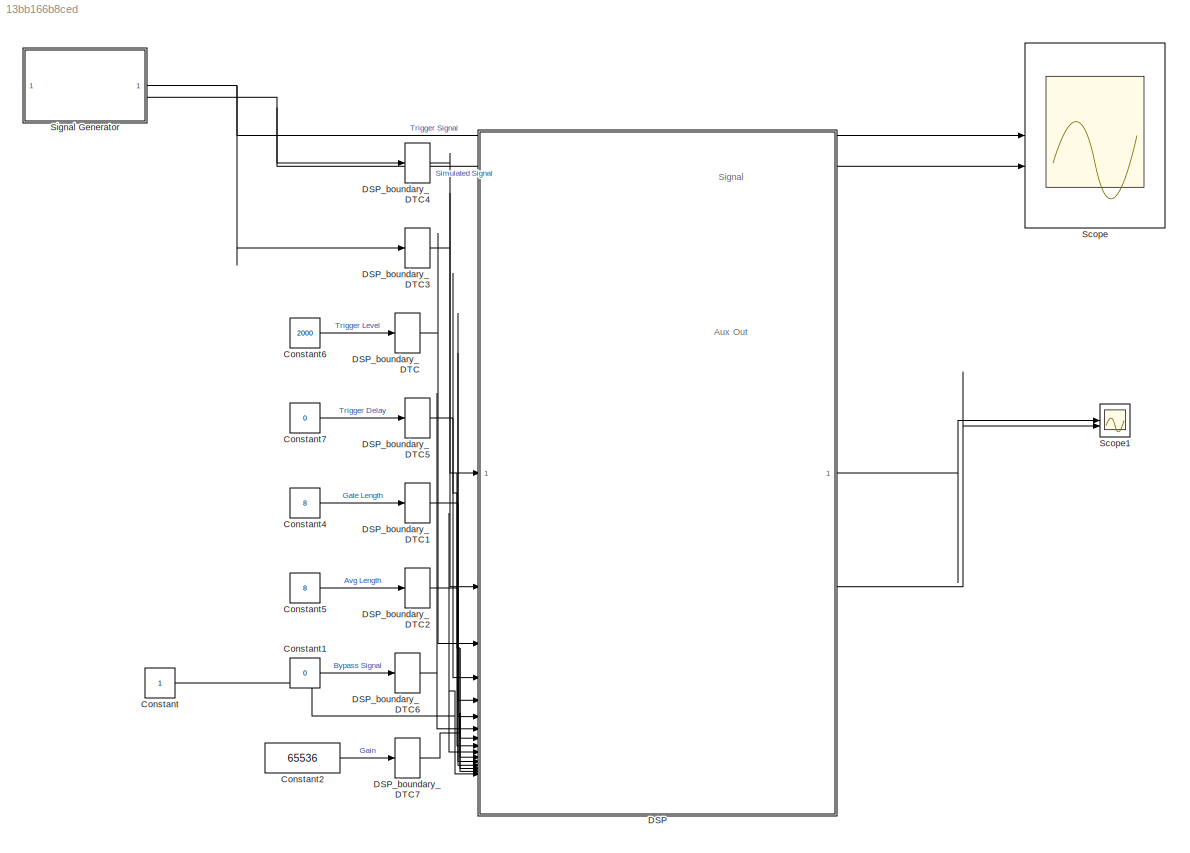
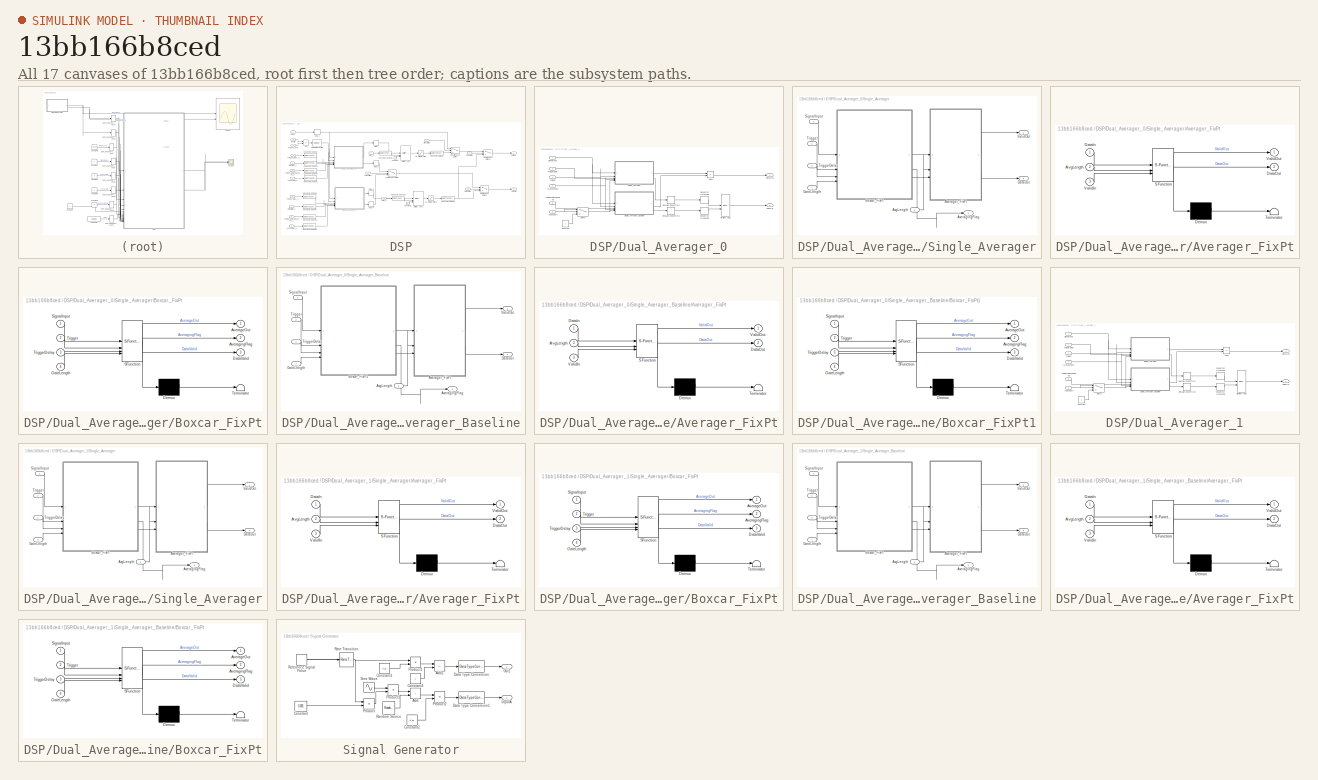
[diagram: thumbnail index - all 17 canvases of the model, root first then tree order]
MODEL slx_13bb166b8ced
KIND model
CONFIG AbsTol = auto
CONFIG EnableMultiTasking = off
CONFIG FixedStep = auto
CONFIG MaxStep = auto
CONFIG MinStep = auto
CONFIG RelTol = 1e-3
CONFIG SampleTimeConstraint = Unconstrained
CONFIG SolverName = FixedStepDiscrete
CONFIG StartTime = 0.0
CONFIG StopTime = 0.001
WORKSPACE source: mxarray member
WORKSPACE test = 0
BLOCK [Constant] Constant
  OutDataTypeStr = boolean
  SampleTime = 1/312.5e6
BLOCK [Constant] Constant1
  OutDataTypeStr = fixdt(0,16,0)
  SampleTime = 1/312.5e6
  Value = 0
BLOCK [Constant] Constant2
  OutDataTypeStr = double
  SampleTime = 1/312.5e6
  Value = 65536
BLOCK [Constant] Constant4
  OutDataTypeStr = double
  SampleTime = 1/312.5e6
  Value = 8
BLOCK [Constant] Constant5
  OutDataTypeStr = double
  SampleTime = 1/312.5e6
  Value = 8
BLOCK [Constant] Constant6
  OutDataTypeStr = double
  SampleTime = 1/312.5e6
  Value = 2000
BLOCK [Constant] Constant7
  OutDataTypeStr = double
  SampleTime = 1/312.5e6
  Value = 0
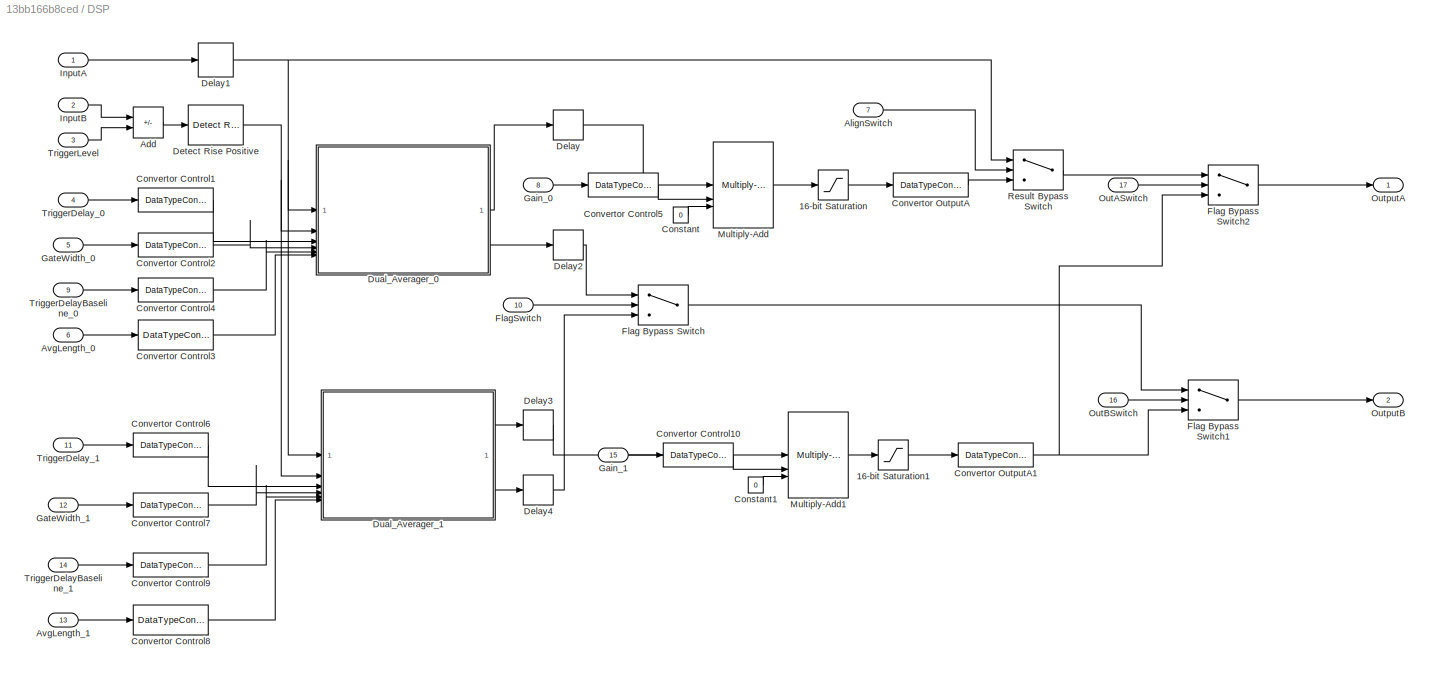
BLOCK [SubSystem] DSP
BLOCK [Saturate] DSP/16-bit Saturation
  LowerLimit = -32768
  UpperLimit = 32767
BLOCK [Saturate] DSP/16-bit Saturation1
  LowerLimit = -32768
  UpperLimit = 32767
BLOCK [Sum] DSP/Add
  IconShape = rectangular
  Inputs = +-
  OutDataTypeStr = fixdt(1,17,0)
BLOCK [Inport] DSP/AlignSwitch
  OutDataTypeStr = boolean
  Port = 7
BLOCK [Inport] DSP/AvgLength_0
  OutDataTypeStr = fixdt(1,16,0)
  Port = 6
BLOCK [Inport] DSP/AvgLength_1
  OutDataTypeStr = fixdt(1,16,0)
  Port = 13
BLOCK [Constant] DSP/Constant
  OutDataTypeStr = fixdt(0,1,0)
  SampleTime = 1/312.5e6
  Value = 0
BLOCK [Constant] DSP/Constant1
  OutDataTypeStr = fixdt(0,1,0)
  SampleTime = 1/312.5e6
  Value = 0
BLOCK [DataTypeConversion] DSP/Convertor Control1
  ConvertRealWorld = Stored Integer (SI)
  OutDataTypeStr = uint32
  RndMeth = Floor
  SaturateOnIntegerOverflow = off
BLOCK [DataTypeConversion] DSP/Convertor Control10
  ConvertRealWorld = Stored Integer (SI)
  OutDataTypeStr = fixdt(0,32,16)
  RndMeth = Floor
  SaturateOnIntegerOverflow = off
BLOCK [DataTypeConversion] DSP/Convertor Control2
  ConvertRealWorld = Stored Integer (SI)
  RndMeth = Floor
  SaturateOnIntegerOverflow = off
BLOCK [DataTypeConversion] DSP/Convertor Control3
  ConvertRealWorld = Stored Integer (SI)
  RndMeth = Floor
  SaturateOnIntegerOverflow = off
BLOCK [DataTypeConversion] DSP/Convertor Control4
  ConvertRealWorld = Stored Integer (SI)
  OutDataTypeStr = uint32
  RndMeth = Floor
  SaturateOnIntegerOverflow = off
BLOCK [DataTypeConversion] DSP/Convertor Control5
  ConvertRealWorld = Stored Integer (SI)
  OutDataTypeStr = fixdt(0,32,16)
  RndMeth = Floor
  SaturateOnIntegerOverflow = off
BLOCK [DataTypeConversion] DSP/Convertor Control6
  ConvertRealWorld = Stored Integer (SI)
  OutDataTypeStr = uint32
  RndMeth = Floor
  SaturateOnIntegerOverflow = off
BLOCK [DataTypeConversion] DSP/Convertor Control7
  ConvertRealWorld = Stored Integer (SI)
  RndMeth = Floor
  SaturateOnIntegerOverflow = off
BLOCK [DataTypeConversion] DSP/Convertor Control8
  ConvertRealWorld = Stored Integer (SI)
  RndMeth = Floor
  SaturateOnIntegerOverflow = off
BLOCK [DataTypeConversion] DSP/Convertor Control9
  ConvertRealWorld = Stored Integer (SI)
  OutDataTypeStr = uint32
  RndMeth = Floor
  SaturateOnIntegerOverflow = off
BLOCK [DataTypeConversion] DSP/Convertor OutputA
  OutDataTypeStr = fixdt(1,16,0)
  RndMeth = Floor
  SaturateOnIntegerOverflow = off
BLOCK [DataTypeConversion] DSP/Convertor OutputA1
  OutDataTypeStr = fixdt(1,16,0)
  RndMeth = Floor
  SaturateOnIntegerOverflow = off
BLOCK [Delay] DSP/Delay
  DelayLength = 1
  InitialCondition = 0
  InputPortMap = u0
  UseCircularBuffer = on
  UserDataPersistent = on
BLOCK [Delay] DSP/Delay1
  InitialCondition = 0
  InputPortMap = u0
BLOCK [Delay] DSP/Delay2
  DelayLength = 1
  InitialCondition = 0
  InputPortMap = u0
  UseCircularBuffer = on
  UserDataPersistent = on
BLOCK [Delay] DSP/Delay3
  DelayLength = 1
  InitialCondition = 0
  InputPortMap = u0
  UseCircularBuffer = on
  UserDataPersistent = on
BLOCK [Delay] DSP/Delay4
  DelayLength = 1
  InitialCondition = 0
  InputPortMap = u0
  UseCircularBuffer = on
  UserDataPersistent = on
BLOCK [Reference] DSP/Detect Rise Positive  REF=hdlsllib/Logic and Bit
Operations/Detect Rise
Positive
  SourceBlock = hdlsllib/Logic and Bit\nOperations/Detect Rise\nPositive
  SourceType = Detect Rise Positive
BLOCK [SubSystem] DSP/Dual_Averager_0
BLOCK [Sum] DSP/Dual_Averager_0/Add2
  IconShape = rectangular
  Inputs = +-
BLOCK [Inport] DSP/Dual_Averager_0/AvgLength
  Port = 6
BLOCK [Reference] DSP/Dual_Averager_0/Bitwise AND1  REF=simulink/Logic and Bit
Operations/Bitwise
Operator
  LibrarySourceBlock = simulink/Quick Insert/Logic and Bit\nOperations/Bitwise AND
  SourceBlock = simulink/Logic and Bit\nOperations/Bitwise\nOperator
  SourceType = Bitwise Operator
BLOCK [Constant] DSP/Dual_Averager_0/Constant
  OutDataTypeStr = uint16
  SampleTime = -1
BLOCK [DataTypeConversion] DSP/Dual_Averager_0/Convertor OutputB2
  ConvertRealWorld = Stored Integer (SI)
  RndMeth = Floor
  SaturateOnIntegerOverflow = off
BLOCK [DataTypeConversion] DSP/Dual_Averager_0/Convertor OutputB3
  ConvertRealWorld = Stored Integer (SI)
  RndMeth = Floor
  SaturateOnIntegerOverflow = off
BLOCK [Outport] DSP/Dual_Averager_0/DataOut
BLOCK [Outport] DSP/Dual_Averager_0/FlagOut
  Port = 2
BLOCK [Inport] DSP/Dual_Averager_0/GateLength
  Port = 4
BLOCK [DataTypeConversion] DSP/Dual_Averager_0/Rescale Convertor2
  OutDataTypeStr = fixdt(1,16,14)
  RndMeth = Floor
  SaturateOnIntegerOverflow = off
BLOCK [DataTypeConversion] DSP/Dual_Averager_0/Rescale Convertor3
  OutDataTypeStr = fixdt(1,16,13)
  RndMeth = Floor
  SaturateOnIntegerOverflow = off
BLOCK [Inport] DSP/Dual_Averager_0/SignalInput
BLOCK [SubSystem] DSP/Dual_Averager_0/Single_Averager
  TreatAsAtomicUnit = on
BLOCK [SubSystem] DSP/Dual_Averager_0/Single_Averager/Averager_FixPt
  ErrorFcn = Stateflow.Translate.translate
  PermitHierarchicalResolution = ExplicitOnly
  SFBlockType = MATLAB Function
  TreatAsAtomicUnit = on
  VariantControl = (default)
BLOCK [Demux] DSP/Dual_Averager_0/Single_Averager/Averager_FixPt/ Demux 
  Outputs = 1
BLOCK [S-Function] DSP/Dual_Averager_0/Single_Averager/Averager_FixPt/ SFunction 
  EnableBusSupport = on
  FunctionName = sf_sfun
  PortCounts = [3 3]
  SFcnIsStateOwnerBlock = off
  SFunctionDeploymentMode = off
  Tag = Stateflow S-Function 2
BLOCK [Terminator] DSP/Dual_Averager_0/Single_Averager/Averager_FixPt/ Terminator 
BLOCK [Inport] DSP/Dual_Averager_0/Single_Averager/Averager_FixPt/AvgLength
  Port = 2
BLOCK [Inport] DSP/Dual_Averager_0/Single_Averager/Averager_FixPt/DataIn
BLOCK [Outport] DSP/Dual_Averager_0/Single_Averager/Averager_FixPt/DataOut
  Port = 2
BLOCK [Inport] DSP/Dual_Averager_0/Single_Averager/Averager_FixPt/ValidIn
  Port = 3
BLOCK [Outport] DSP/Dual_Averager_0/Single_Averager/Averager_FixPt/ValidOut
  VectorParamsAs1DForOutWhenUnconnected = off
BLOCK [Outport] DSP/Dual_Averager_0/Single_Averager/AveragingFlag
  Port = 3
BLOCK [Inport] DSP/Dual_Averager_0/Single_Averager/AvgLength
  Port = 5
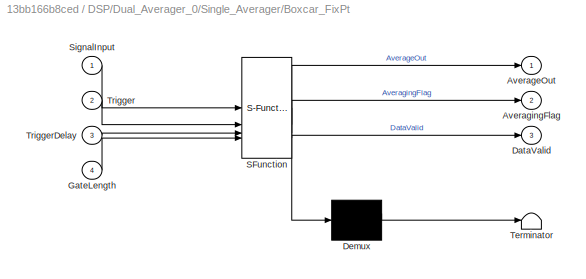
BLOCK [SubSystem] DSP/Dual_Averager_0/Single_Averager/Boxcar_FixPt
  ErrorFcn = Stateflow.Translate.translate
  PermitHierarchicalResolution = ExplicitOnly
  SFBlockType = MATLAB Function
  TreatAsAtomicUnit = on
  VariantControl = (default)
BLOCK [Demux] DSP/Dual_Averager_0/Single_Averager/Boxcar_FixPt/ Demux 
  Outputs = 1
BLOCK [S-Function] DSP/Dual_Averager_0/Single_Averager/Boxcar_FixPt/ SFunction 
  EnableBusSupport = on
  FunctionName = sf_sfun
  PortCounts = [4 4]
  SFcnIsStateOwnerBlock = off
  SFunctionDeploymentMode = off
  Tag = Stateflow S-Function 4
BLOCK [Terminator] DSP/Dual_Averager_0/Single_Averager/Boxcar_FixPt/ Terminator 
BLOCK [Outport] DSP/Dual_Averager_0/Single_Averager/Boxcar_FixPt/AverageOut
  VectorParamsAs1DForOutWhenUnconnected = off
BLOCK [Outport] DSP/Dual_Averager_0/Single_Averager/Boxcar_FixPt/AveragingFlag
  Port = 2
BLOCK [Outport] DSP/Dual_Averager_0/Single_Averager/Boxcar_FixPt/DataValid
  Port = 3
BLOCK [Inport] DSP/Dual_Averager_0/Single_Averager/Boxcar_FixPt/GateLength
  Port = 4
BLOCK [Inport] DSP/Dual_Averager_0/Single_Averager/Boxcar_FixPt/SignalInput
BLOCK [Inport] DSP/Dual_Averager_0/Single_Averager/Boxcar_FixPt/Trigger
  Port = 2
BLOCK [Inport] DSP/Dual_Averager_0/Single_Averager/Boxcar_FixPt/TriggerDelay
  Port = 3
BLOCK [Outport] DSP/Dual_Averager_0/Single_Averager/DataOut
  Port = 2
BLOCK [Inport] DSP/Dual_Averager_0/Single_Averager/GateLength
  Port = 4
BLOCK [Inport] DSP/Dual_Averager_0/Single_Averager/SignalInput
BLOCK [Inport] DSP/Dual_Averager_0/Single_Averager/Trigger
  Port = 2
BLOCK [Inport] DSP/Dual_Averager_0/Single_Averager/TriggerDelay
  Port = 3
BLOCK [Outport] DSP/Dual_Averager_0/Single_Averager/ValidOut
BLOCK [SubSystem] DSP/Dual_Averager_0/Single_Averager_Baseline
  TreatAsAtomicUnit = on
BLOCK [SubSystem] DSP/Dual_Averager_0/Single_Averager_Baseline/Averager_FixPt
  ErrorFcn = Stateflow.Translate.translate
  PermitHierarchicalResolution = ExplicitOnly
  SFBlockType = MATLAB Function
  TreatAsAtomicUnit = on
  VariantControl = (default)
BLOCK [Demux] DSP/Dual_Averager_0/Single_Averager_Baseline/Averager_FixPt/ Demux 
  Outputs = 1
BLOCK [S-Function] DSP/Dual_Averager_0/Single_Averager_Baseline/Averager_FixPt/ SFunction 
  EnableBusSupport = on
  FunctionName = sf_sfun
  PortCounts = [3 3]
  SFcnIsStateOwnerBlock = off
  SFunctionDeploymentMode = off
  Tag = Stateflow S-Function 1
BLOCK [Terminator] DSP/Dual_Averager_0/Single_Averager_Baseline/Averager_FixPt/ Terminator 
BLOCK [Inport] DSP/Dual_Averager_0/Single_Averager_Baseline/Averager_FixPt/AvgLength
  Port = 2
BLOCK [Inport] DSP/Dual_Averager_0/Single_Averager_Baseline/Averager_FixPt/DataIn
BLOCK [Outport] DSP/Dual_Averager_0/Single_Averager_Baseline/Averager_FixPt/DataOut
  Port = 2
BLOCK [Inport] DSP/Dual_Averager_0/Single_Averager_Baseline/Averager_FixPt/ValidIn
  Port = 3
BLOCK [Outport] DSP/Dual_Averager_0/Single_Averager_Baseline/Averager_FixPt/ValidOut
  VectorParamsAs1DForOutWhenUnconnected = off
BLOCK [Outport] DSP/Dual_Averager_0/Single_Averager_Baseline/AveragingFlag
  Port = 3
BLOCK [Inport] DSP/Dual_Averager_0/Single_Averager_Baseline/AvgLength
  Port = 5
BLOCK [SubSystem] DSP/Dual_Averager_0/Single_Averager_Baseline/Boxcar_FixPt1
  ErrorFcn = Stateflow.Translate.translate
  PermitHierarchicalResolution = ExplicitOnly
  SFBlockType = MATLAB Function
  TreatAsAtomicUnit = on
  VariantControl = (default)
BLOCK [Demux] DSP/Dual_Averager_0/Single_Averager_Baseline/Boxcar_FixPt1/ Demux 
  Outputs = 1
BLOCK [S-Function] DSP/Dual_Averager_0/Single_Averager_Baseline/Boxcar_FixPt1/ SFunction 
  EnableBusSupport = on
  FunctionName = sf_sfun
  PortCounts = [4 4]
  SFcnIsStateOwnerBlock = off
  SFunctionDeploymentMode = off
  Tag = Stateflow S-Function 9
BLOCK [Terminator] DSP/Dual_Averager_0/Single_Averager_Baseline/Boxcar_FixPt1/ Terminator 
BLOCK [Outport] DSP/Dual_Averager_0/Single_Averager_Baseline/Boxcar_FixPt1/AverageOut
  VectorParamsAs1DForOutWhenUnconnected = off
BLOCK [Outport] DSP/Dual_Averager_0/Single_Averager_Baseline/Boxcar_FixPt1/AveragingFlag
  Port = 2
BLOCK [Outport] DSP/Dual_Averager_0/Single_Averager_Baseline/Boxcar_FixPt1/DataValid
  Port = 3
BLOCK [Inport] DSP/Dual_Averager_0/Single_Averager_Baseline/Boxcar_FixPt1/GateLength
  Port = 4
BLOCK [Inport] DSP/Dual_Averager_0/Single_Averager_Baseline/Boxcar_FixPt1/SignalInput
BLOCK [Inport] DSP/Dual_Averager_0/Single_Averager_Baseline/Boxcar_FixPt1/Trigger
  Port = 2
BLOCK [Inport] DSP/Dual_Averager_0/Single_Averager_Baseline/Boxcar_FixPt1/TriggerDelay
  Port = 3
BLOCK [Outport] DSP/Dual_Averager_0/Single_Averager_Baseline/DataOut
  Port = 2
BLOCK [Inport] DSP/Dual_Averager_0/Single_Averager_Baseline/GateLength
  Port = 4
BLOCK [Inport] DSP/Dual_Averager_0/Single_Averager_Baseline/SignalInput
BLOCK [Inport] DSP/Dual_Averager_0/Single_Averager_Baseline/Trigger
  Port = 2
BLOCK [Inport] DSP/Dual_Averager_0/Single_Averager_Baseline/TriggerDelay
  Port = 3
BLOCK [Outport] DSP/Dual_Averager_0/Single_Averager_Baseline/ValidOut
BLOCK [Switch] DSP/Dual_Averager_0/Switch
  Criteria = u2 > Threshold
  InputSameDT = off
  OutDataTypeStr = Inherit: Same as first input
  SaturateOnIntegerOverflow = off
BLOCK [Inport] DSP/Dual_Averager_0/Trigger
  Port = 2
BLOCK [Inport] DSP/Dual_Averager_0/TriggerDelay
  Port = 3
BLOCK [Inport] DSP/Dual_Averager_0/TriggerDelayBaseline
  Port = 5
BLOCK [SubSystem] DSP/Dual_Averager_1
BLOCK [Sum] DSP/Dual_Averager_1/Add2
  IconShape = rectangular
  Inputs = +-
BLOCK [Inport] DSP/Dual_Averager_1/AvgLength
  Port = 6
BLOCK [Reference] DSP/Dual_Averager_1/Bitwise AND1  REF=simulink/Logic and Bit
Operations/Bitwise
Operator
  LibrarySourceBlock = simulink/Quick Insert/Logic and Bit\nOperations/Bitwise AND
  SourceBlock = simulink/Logic and Bit\nOperations/Bitwise\nOperator
  SourceType = Bitwise Operator
BLOCK [Constant] DSP/Dual_Averager_1/Constant
  OutDataTypeStr = uint16
  SampleTime = -1
BLOCK [DataTypeConversion] DSP/Dual_Averager_1/Convertor OutputB2
  ConvertRealWorld = Stored Integer (SI)
  RndMeth = Floor
  SaturateOnIntegerOverflow = off
BLOCK [DataTypeConversion] DSP/Dual_Averager_1/Convertor OutputB3
  ConvertRealWorld = Stored Integer (SI)
  RndMeth = Floor
  SaturateOnIntegerOverflow = off
BLOCK [Outport] DSP/Dual_Averager_1/DataOut
BLOCK [Outport] DSP/Dual_Averager_1/FlagOut
  Port = 2
BLOCK [Inport] DSP/Dual_Averager_1/GateLength
  Port = 4
BLOCK [DataTypeConversion] DSP/Dual_Averager_1/Rescale Convertor2
  OutDataTypeStr = fixdt(1,16,14)
  RndMeth = Floor
  SaturateOnIntegerOverflow = off
BLOCK [DataTypeConversion] DSP/Dual_Averager_1/Rescale Convertor3
  OutDataTypeStr = fixdt(1,16,13)
  RndMeth = Floor
  SaturateOnIntegerOverflow = off
BLOCK [Inport] DSP/Dual_Averager_1/SignalInput
BLOCK [SubSystem] DSP/Dual_Averager_1/Single_Averager
  TreatAsAtomicUnit = on
BLOCK [SubSystem] DSP/Dual_Averager_1/Single_Averager/Averager_FixPt
  ErrorFcn = Stateflow.Translate.translate
  PermitHierarchicalResolution = ExplicitOnly
  SFBlockType = MATLAB Function
  TreatAsAtomicUnit = on
  VariantControl = (default)
BLOCK [Demux] DSP/Dual_Averager_1/Single_Averager/Averager_FixPt/ Demux 
  Outputs = 1
BLOCK [S-Function] DSP/Dual_Averager_1/Single_Averager/Averager_FixPt/ SFunction 
  EnableBusSupport = on
  FunctionName = sf_sfun
  PortCounts = [3 3]
  SFcnIsStateOwnerBlock = off
  SFunctionDeploymentMode = off
  Tag = Stateflow S-Function 5
BLOCK [Terminator] DSP/Dual_Averager_1/Single_Averager/Averager_FixPt/ Terminator 
BLOCK [Inport] DSP/Dual_Averager_1/Single_Averager/Averager_FixPt/AvgLength
  Port = 2
BLOCK [Inport] DSP/Dual_Averager_1/Single_Averager/Averager_FixPt/DataIn
BLOCK [Outport] DSP/Dual_Averager_1/Single_Averager/Averager_FixPt/DataOut
  Port = 2
BLOCK [Inport] DSP/Dual_Averager_1/Single_Averager/Averager_FixPt/ValidIn
  Port = 3
BLOCK [Outport] DSP/Dual_Averager_1/Single_Averager/Averager_FixPt/ValidOut
  VectorParamsAs1DForOutWhenUnconnected = off
BLOCK [Outport] DSP/Dual_Averager_1/Single_Averager/AveragingFlag
  Port = 3
BLOCK [Inport] DSP/Dual_Averager_1/Single_Averager/AvgLength
  Port = 5
BLOCK [SubSystem] DSP/Dual_Averager_1/Single_Averager/Boxcar_FixPt
  ErrorFcn = Stateflow.Translate.translate
  PermitHierarchicalResolution = ExplicitOnly
  SFBlockType = MATLAB Function
  TreatAsAtomicUnit = on
  VariantControl = (default)
BLOCK [Demux] DSP/Dual_Averager_1/Single_Averager/Boxcar_FixPt/ Demux 
  Outputs = 1
BLOCK [S-Function] DSP/Dual_Averager_1/Single_Averager/Boxcar_FixPt/ SFunction 
  EnableBusSupport = on
  FunctionName = sf_sfun
  PortCounts = [4 4]
  SFcnIsStateOwnerBlock = off
  SFunctionDeploymentMode = off
  Tag = Stateflow S-Function 3
BLOCK [Terminator] DSP/Dual_Averager_1/Single_Averager/Boxcar_FixPt/ Terminator 
BLOCK [Outport] DSP/Dual_Averager_1/Single_Averager/Boxcar_FixPt/AverageOut
  VectorParamsAs1DForOutWhenUnconnected = off
BLOCK [Outport] DSP/Dual_Averager_1/Single_Averager/Boxcar_FixPt/AveragingFlag
  Port = 2
BLOCK [Outport] DSP/Dual_Averager_1/Single_Averager/Boxcar_FixPt/DataValid
  Port = 3
BLOCK [Inport] DSP/Dual_Averager_1/Single_Averager/Boxcar_FixPt/GateLength
  Port = 4
BLOCK [Inport] DSP/Dual_Averager_1/Single_Averager/Boxcar_FixPt/SignalInput
BLOCK [Inport] DSP/Dual_Averager_1/Single_Averager/Boxcar_FixPt/Trigger
  Port = 2
BLOCK [Inport] DSP/Dual_Averager_1/Single_Averager/Boxcar_FixPt/TriggerDelay
  Port = 3
BLOCK [Outport] DSP/Dual_Averager_1/Single_Averager/DataOut
  Port = 2
BLOCK [Inport] DSP/Dual_Averager_1/Single_Averager/GateLength
  Port = 4
BLOCK [Inport] DSP/Dual_Averager_1/Single_Averager/SignalInput
BLOCK [Inport] DSP/Dual_Averager_1/Single_Averager/Trigger
  Port = 2
BLOCK [Inport] DSP/Dual_Averager_1/Single_Averager/TriggerDelay
  Port = 3
BLOCK [Outport] DSP/Dual_Averager_1/Single_Averager/ValidOut
BLOCK [SubSystem] DSP/Dual_Averager_1/Single_Averager_Baseline
  TreatAsAtomicUnit = on
BLOCK [SubSystem] DSP/Dual_Averager_1/Single_Averager_Baseline/Averager_FixPt
  ErrorFcn = Stateflow.Translate.translate
  PermitHierarchicalResolution = ExplicitOnly
  SFBlockType = MATLAB Function
  TreatAsAtomicUnit = on
  VariantControl = (default)
BLOCK [Demux] DSP/Dual_Averager_1/Single_Averager_Baseline/Averager_FixPt/ Demux 
  Outputs = 1
BLOCK [S-Function] DSP/Dual_Averager_1/Single_Averager_Baseline/Averager_FixPt/ SFunction 
  EnableBusSupport = on
  FunctionName = sf_sfun
  PortCounts = [3 3]
  SFcnIsStateOwnerBlock = off
  SFunctionDeploymentMode = off
  Tag = Stateflow S-Function 7
BLOCK [Terminator] DSP/Dual_Averager_1/Single_Averager_Baseline/Averager_FixPt/ Terminator 
BLOCK [Inport] DSP/Dual_Averager_1/Single_Averager_Baseline/Averager_FixPt/AvgLength
  Port = 2
BLOCK [Inport] DSP/Dual_Averager_1/Single_Averager_Baseline/Averager_FixPt/DataIn
BLOCK [Outport] DSP/Dual_Averager_1/Single_Averager_Baseline/Averager_FixPt/DataOut
  Port = 2
BLOCK [Inport] DSP/Dual_Averager_1/Single_Averager_Baseline/Averager_FixPt/ValidIn
  Port = 3
BLOCK [Outport] DSP/Dual_Averager_1/Single_Averager_Baseline/Averager_FixPt/ValidOut
  VectorParamsAs1DForOutWhenUnconnected = off
BLOCK [Outport] DSP/Dual_Averager_1/Single_Averager_Baseline/AveragingFlag
  Port = 3
BLOCK [Inport] DSP/Dual_Averager_1/Single_Averager_Baseline/AvgLength
  Port = 5
BLOCK [SubSystem] DSP/Dual_Averager_1/Single_Averager_Baseline/Boxcar_FixPt
  ErrorFcn = Stateflow.Translate.translate
  PermitHierarchicalResolution = ExplicitOnly
  SFBlockType = MATLAB Function
  TreatAsAtomicUnit = on
  VariantControl = (default)
BLOCK [Demux] DSP/Dual_Averager_1/Single_Averager_Baseline/Boxcar_FixPt/ Demux 
  Outputs = 1
BLOCK [S-Function] DSP/Dual_Averager_1/Single_Averager_Baseline/Boxcar_FixPt/ SFunction 
  EnableBusSupport = on
  FunctionName = sf_sfun
  PortCounts = [4 4]
  SFcnIsStateOwnerBlock = off
  SFunctionDeploymentMode = off
  Tag = Stateflow S-Function 6
BLOCK [Terminator] DSP/Dual_Averager_1/Single_Averager_Baseline/Boxcar_FixPt/ Terminator 
BLOCK [Outport] DSP/Dual_Averager_1/Single_Averager_Baseline/Boxcar_FixPt/AverageOut
  VectorParamsAs1DForOutWhenUnconnected = off
BLOCK [Outport] DSP/Dual_Averager_1/Single_Averager_Baseline/Boxcar_FixPt/AveragingFlag
  Port = 2
BLOCK [Outport] DSP/Dual_Averager_1/Single_Averager_Baseline/Boxcar_FixPt/DataValid
  Port = 3
BLOCK [Inport] DSP/Dual_Averager_1/Single_Averager_Baseline/Boxcar_FixPt/GateLength
  Port = 4
BLOCK [Inport] DSP/Dual_Averager_1/Single_Averager_Baseline/Boxcar_FixPt/SignalInput
BLOCK [Inport] DSP/Dual_Averager_1/Single_Averager_Baseline/Boxcar_FixPt/Trigger
  Port = 2
BLOCK [Inport] DSP/Dual_Averager_1/Single_Averager_Baseline/Boxcar_FixPt/TriggerDelay
  Port = 3
BLOCK [Outport] DSP/Dual_Averager_1/Single_Averager_Baseline/DataOut
  Port = 2
BLOCK [Inport] DSP/Dual_Averager_1/Single_Averager_Baseline/GateLength
  Port = 4
BLOCK [Inport] DSP/Dual_Averager_1/Single_Averager_Baseline/SignalInput
BLOCK [Inport] DSP/Dual_Averager_1/Single_Averager_Baseline/Trigger
  Port = 2
BLOCK [Inport] DSP/Dual_Averager_1/Single_Averager_Baseline/TriggerDelay
  Port = 3
BLOCK [Outport] DSP/Dual_Averager_1/Single_Averager_Baseline/ValidOut
BLOCK [Switch] DSP/Dual_Averager_1/Switch
  Criteria = u2 > Threshold
  InputSameDT = off
  OutDataTypeStr = Inherit: Same as first input
  SaturateOnIntegerOverflow = off
BLOCK [Inport] DSP/Dual_Averager_1/Trigger
  Port = 2
BLOCK [Inport] DSP/Dual_Averager_1/TriggerDelay
  Port = 3
BLOCK [Inport] DSP/Dual_Averager_1/TriggerDelayBaseline
  Port = 5
BLOCK [Switch] DSP/Flag Bypass Switch
  Criteria = u2 > Threshold
  InputSameDT = off
  OutDataTypeStr = Inherit: Same as first input
  SaturateOnIntegerOverflow = off
BLOCK [Switch] DSP/Flag Bypass Switch1
  Criteria = u2 > Threshold
  InputSameDT = off
  OutDataTypeStr = Inherit: Same as first input
  SaturateOnIntegerOverflow = off
BLOCK [Switch] DSP/Flag Bypass Switch2
  Criteria = u2 > Threshold
  InputSameDT = off
  OutDataTypeStr = Inherit: Same as first input
  SaturateOnIntegerOverflow = off
BLOCK [Inport] DSP/FlagSwitch
  OutDataTypeStr = boolean
  Port = 10
BLOCK [Inport] DSP/Gain_0
  OutDataTypeStr = fixdt(1,32,0)
  Port = 8
BLOCK [Inport] DSP/Gain_1
  OutDataTypeStr = fixdt(1,32,0)
  Port = 15
BLOCK [Inport] DSP/GateWidth_0
  OutDataTypeStr = fixdt(1,16,0)
  Port = 5
BLOCK [Inport] DSP/GateWidth_1
  OutDataTypeStr = fixdt(1,16,0)
  Port = 12
BLOCK [Inport] DSP/InputA
  OutDataTypeStr = fixdt(1,16,0)
BLOCK [Inport] DSP/InputB
  OutDataTypeStr = fixdt(1,16,0)
  Port = 2
BLOCK [Reference] DSP/Multiply-Add  REF=hdlsllib/HDL Operations/Multiply-Add
  SourceBlock = hdlsllib/HDL Operations/Multiply-Add
  SourceType = Multiply-Add
BLOCK [Reference] DSP/Multiply-Add1  REF=hdlsllib/HDL Operations/Multiply-Add
  SourceBlock = hdlsllib/HDL Operations/Multiply-Add
  SourceType = Multiply-Add
BLOCK [Inport] DSP/OutASwitch
  OutDataTypeStr = boolean
  Port = 17
BLOCK [Inport] DSP/OutBSwitch
  OutDataTypeStr = boolean
  Port = 16
BLOCK [Outport] DSP/OutputA
  OutDataTypeStr = fixdt(1,16,0)
  VectorParamsAs1DForOutWhenUnconnected = off
BLOCK [Outport] DSP/OutputB
  OutDataTypeStr = fixdt(1,16,0)
  Port = 2
  VectorParamsAs1DForOutWhenUnconnected = off
BLOCK [Switch] DSP/Result Bypass Switch
  Criteria = u2 > Threshold
  InputSameDT = off
  OutDataTypeStr = fixdt(1,16,0)
  SaturateOnIntegerOverflow = off
BLOCK [Inport] DSP/TriggerDelayBaseline_0
  OutDataTypeStr = fixdt(1,32,0)
  Port = 9
BLOCK [Inport] DSP/TriggerDelayBaseline_1
  OutDataTypeStr = fixdt(1,32,0)
  Port = 14
BLOCK [Inport] DSP/TriggerDelay_0
  OutDataTypeStr = fixdt(1,32,0)
  Port = 4
BLOCK [Inport] DSP/TriggerDelay_1
  OutDataTypeStr = fixdt(1,32,0)
  Port = 11
BLOCK [Inport] DSP/TriggerLevel
  OutDataTypeStr = fixdt(1,16,0)
  Port = 3
BLOCK [DataTypeConversion] DSP_boundary_DTC
BLOCK [DataTypeConversion] DSP_boundary_DTC1
BLOCK [DataTypeConversion] DSP_boundary_DTC2
BLOCK [DataTypeConversion] DSP_boundary_DTC3
BLOCK [DataTypeConversion] DSP_boundary_DTC4
BLOCK [DataTypeConversion] DSP_boundary_DTC5
BLOCK [DataTypeConversion] DSP_boundary_DTC6
BLOCK [DataTypeConversion] DSP_boundary_DTC7
BLOCK [Scope] Scope
  Floating = off
  NumInputPorts = 4
  ScopeSpecificationString = Simulink.scopes.TimeScopeBlockCfg('CurrentConfiguration', extmgr.ConfigurationSet(extmgr.Configuration('Core','General UI',true),extmgr.Configuration('Core','Source UI',true),extmgr.Configuration('Sources','WiredSimulink',true),extmgr.Configuration('Visuals','Time Domain',true,'SerializedDisplays',{struct('MinYLimReal','-4097.00000','MaxYLimReal','36863.00000','YLabelReal','','MinYLimMag','  0.000...<+3438ch>
BLOCK [Scope] Scope1
  Floating = off
  NumInputPorts = 2
  ScopeSpecificationString = Simulink.scopes.TimeScopeBlockCfg('CurrentConfiguration', extmgr.ConfigurationSet(extmgr.Configuration('Core','General UI',true),extmgr.Configuration('Core','Source UI',true),extmgr.Configuration('Sources','WiredSimulink',true,'DataLoggingVariableName','ScopeData1'),extmgr.Configuration('Visuals','Time Domain',true),extmgr.Configuration('Tools','Plot Navigation',true),extmgr.Configuration('Tools',...<+40ch>
BLOCK [SubSystem] Signal Generator
BLOCK [Sum] Signal Generator/Add
  IconShape = rectangular
BLOCK [Sum] Signal Generator/Add1
  IconShape = rectangular
  Inputs = +-
BLOCK [Constant] Signal Generator/Constant
  Value = 0.001
BLOCK [Constant] Signal Generator/Constant1
  Value = 2^15
BLOCK [Constant] Signal Generator/Constant2
  Value = 2^15
BLOCK [Constant] Signal Generator/Constant3
BLOCK [DataTypeConversion] Signal Generator/Data Type Conversion
  OutDataTypeStr = fixdt(1,16,0)
  RndMeth = Floor
  SaturateOnIntegerOverflow = off
BLOCK [DataTypeConversion] Signal Generator/Data Type Conversion1
  OutDataTypeStr = fixdt(1,16,0)
  RndMeth = Floor
  SaturateOnIntegerOverflow = off
BLOCK [Outport] Signal Generator/InputA
  OutDataTypeStr = int16
  Port = 2
BLOCK [Outport] Signal Generator/Out1
  OutDataTypeStr = int16
BLOCK [Product] Signal Generator/Product
BLOCK [Product] Signal Generator/Product1
BLOCK [Product] Signal Generator/Product2
BLOCK [Product] Signal Generator/Product3
BLOCK [Reference] Signal Generator/Random Source  REF=dspsrcs4/Random
Source
  SourceBlock = dspsrcs4/Random\nSource
  SourceType = Random Source
  UserDataPersistent = on
BLOCK [RateTransition] Signal Generator/Rate Transition
  OutPortSampleTime = 1/312.5e6
BLOCK [DiscretePulseGenerator] Signal Generator/Reference Signal Pulse
  Period = 100/(312.5e6)
  PulseType = Time based
  PulseWidth = 16
BLOCK [Sin] Signal Generator/Sine Wave
  Amplitude = 0.5
  Bias = 0.5
  Frequency = 2*pi*10e3
  SampleTime = 1/312.5e6
ANNOTATION (root): Aux Out
ANNOTATION (root): Signal
LINE Constant1:1 -> DSP_boundary_DTC6:1
LINE Constant2:1 -> DSP_boundary_DTC7:1
LINE Constant4:1 -> DSP_boundary_DTC1:1
LINE Constant5:1 -> DSP_boundary_DTC2:1
LINE Constant6:1 -> DSP_boundary_DTC:1
LINE Constant7:1 -> DSP_boundary_DTC5:1
NET Constant:1 -> DSP:10, DSP:16
LINE DSP/16-bit Saturation1:1 -> DSP/Convertor OutputA1:1
LINE DSP/16-bit Saturation:1 -> DSP/Convertor OutputA:1
LINE DSP/Add:1 -> DSP/Detect Rise Positive:1
LINE DSP/AlignSwitch:1 -> DSP/Result Bypass Switch:2
LINE DSP/AvgLength_0:1 -> DSP/Convertor Control3:1
LINE DSP/AvgLength_1:1 -> DSP/Convertor Control8:1
LINE DSP/Constant1:1 -> DSP/Multiply-Add1:3
LINE DSP/Constant:1 -> DSP/Multiply-Add:3
LINE DSP/Convertor Control10:1 -> DSP/Multiply-Add1:2
LINE DSP/Convertor Control1:1 -> DSP/Dual_Averager_0:3
LINE DSP/Convertor Control2:1 -> DSP/Dual_Averager_0:4
LINE DSP/Convertor Control3:1 -> DSP/Dual_Averager_0:6
LINE DSP/Convertor Control4:1 -> DSP/Dual_Averager_0:5
LINE DSP/Convertor Control5:1 -> DSP/Multiply-Add:2
LINE DSP/Convertor Control6:1 -> DSP/Dual_Averager_1:3
LINE DSP/Convertor Control7:1 -> DSP/Dual_Averager_1:4
LINE DSP/Convertor Control8:1 -> DSP/Dual_Averager_1:6
LINE DSP/Convertor Control9:1 -> DSP/Dual_Averager_1:5
NET DSP/Convertor OutputA1:1 -> DSP/Flag Bypass Switch1:3, DSP/Flag Bypass Switch2:3
LINE DSP/Convertor OutputA:1 -> DSP/Result Bypass Switch:3
NET DSP/Delay1:1 -> DSP/Dual_Averager_0:1, DSP/Dual_Averager_1:1, DSP/Result Bypass Switch:1
LINE DSP/Delay2:1 -> DSP/Flag Bypass Switch:1
LINE DSP/Delay3:1 -> DSP/Multiply-Add1:1
LINE DSP/Delay4:1 -> DSP/Flag Bypass Switch:3
LINE DSP/Delay:1 -> DSP/Multiply-Add:1
NET DSP/Detect Rise Positive:1 -> DSP/Dual_Averager_0:2, DSP/Dual_Averager_1:2
LINE DSP/Dual_Averager_0/Add2:1 -> DSP/Dual_Averager_0/DataOut:1
NET DSP/Dual_Averager_0/AvgLength:1 -> DSP/Dual_Averager_0/Switch:1, DSP/Dual_Averager_0/Switch:2
LINE DSP/Dual_Averager_0/Bitwise AND1:1 -> DSP/Dual_Averager_0/FlagOut:1
LINE DSP/Dual_Averager_0/Constant:1 -> DSP/Dual_Averager_0/Switch:3
LINE DSP/Dual_Averager_0/Convertor OutputB2:1 -> DSP/Dual_Averager_0/Bitwise AND1:1
LINE DSP/Dual_Averager_0/Convertor OutputB3:1 -> DSP/Dual_Averager_0/Bitwise AND1:2
NET DSP/Dual_Averager_0/GateLength:1 -> DSP/Dual_Averager_0/Single_Averager:4, DSP/Dual_Averager_0/Single_Averager_Baseline:4
LINE DSP/Dual_Averager_0/Rescale Convertor2:1 -> DSP/Dual_Averager_0/Convertor OutputB2:1
LINE DSP/Dual_Averager_0/Rescale Convertor3:1 -> DSP/Dual_Averager_0/Convertor OutputB3:1
NET DSP/Dual_Averager_0/SignalInput:1 -> DSP/Dual_Averager_0/Single_Averager:1, DSP/Dual_Averager_0/Single_Averager_Baseline:1
LINE DSP/Dual_Averager_0/Single_Averager/Averager_FixPt:1 -> DSP/Dual_Averager_0/Single_Averager/ValidOut:1
LINE DSP/Dual_Averager_0/Single_Averager/Averager_FixPt:2 -> DSP/Dual_Averager_0/Single_Averager/DataOut:1
LINE DSP/Dual_Averager_0/Single_Averager/AvgLength:1 -> DSP/Dual_Averager_0/Single_Averager/Averager_FixPt:2
LINE DSP/Dual_Averager_0/Single_Averager/Boxcar_FixPt:1 -> DSP/Dual_Averager_0/Single_Averager/Averager_FixPt:1
LINE DSP/Dual_Averager_0/Single_Averager/Boxcar_FixPt:2 -> DSP/Dual_Averager_0/Single_Averager/AveragingFlag:1
LINE DSP/Dual_Averager_0/Single_Averager/Boxcar_FixPt:3 -> DSP/Dual_Averager_0/Single_Averager/Averager_FixPt:3
LINE DSP/Dual_Averager_0/Single_Averager/GateLength:1 -> DSP/Dual_Averager_0/Single_Averager/Boxcar_FixPt:4
LINE DSP/Dual_Averager_0/Single_Averager/SignalInput:1 -> DSP/Dual_Averager_0/Single_Averager/Boxcar_FixPt:1
LINE DSP/Dual_Averager_0/Single_Averager/Trigger:1 -> DSP/Dual_Averager_0/Single_Averager/Boxcar_FixPt:2
LINE DSP/Dual_Averager_0/Single_Averager/TriggerDelay:1 -> DSP/Dual_Averager_0/Single_Averager/Boxcar_FixPt:3
LINE DSP/Dual_Averager_0/Single_Averager:2 -> DSP/Dual_Averager_0/Add2:1
LINE DSP/Dual_Averager_0/Single_Averager:3 -> DSP/Dual_Averager_0/Rescale Convertor2:1
LINE DSP/Dual_Averager_0/Single_Averager_Baseline/Averager_FixPt:1 -> DSP/Dual_Averager_0/Single_Averager_Baseline/ValidOut:1
LINE DSP/Dual_Averager_0/Single_Averager_Baseline/Averager_FixPt:2 -> DSP/Dual_Averager_0/Single_Averager_Baseline/DataOut:1
LINE DSP/Dual_Averager_0/Single_Averager_Baseline/AvgLength:1 -> DSP/Dual_Averager_0/Single_Averager_Baseline/Averager_FixPt:2
LINE DSP/Dual_Averager_0/Single_Averager_Baseline/Boxcar_FixPt1:1 -> DSP/Dual_Averager_0/Single_Averager_Baseline/Averager_FixPt:1
LINE DSP/Dual_Averager_0/Single_Averager_Baseline/Boxcar_FixPt1:2 -> DSP/Dual_Averager_0/Single_Averager_Baseline/AveragingFlag:1
LINE DSP/Dual_Averager_0/Single_Averager_Baseline/Boxcar_FixPt1:3 -> DSP/Dual_Averager_0/Single_Averager_Baseline/Averager_FixPt:3
LINE DSP/Dual_Averager_0/Single_Averager_Baseline/GateLength:1 -> DSP/Dual_Averager_0/Single_Averager_Baseline/Boxcar_FixPt1:4
LINE DSP/Dual_Averager_0/Single_Averager_Baseline/SignalInput:1 -> DSP/Dual_Averager_0/Single_Averager_Baseline/Boxcar_FixPt1:1
LINE DSP/Dual_Averager_0/Single_Averager_Baseline/Trigger:1 -> DSP/Dual_Averager_0/Single_Averager_Baseline/Boxcar_FixPt1:2
LINE DSP/Dual_Averager_0/Single_Averager_Baseline/TriggerDelay:1 -> DSP/Dual_Averager_0/Single_Averager_Baseline/Boxcar_FixPt1:3
LINE DSP/Dual_Averager_0/Single_Averager_Baseline:2 -> DSP/Dual_Averager_0/Add2:2
LINE DSP/Dual_Averager_0/Single_Averager_Baseline:3 -> DSP/Dual_Averager_0/Rescale Convertor3:1
NET DSP/Dual_Averager_0/Switch:1 -> DSP/Dual_Averager_0/Single_Averager:5, DSP/Dual_Averager_0/Single_Averager_Baseline:5
NET DSP/Dual_Averager_0/Trigger:1 -> DSP/Dual_Averager_0/Single_Averager:2, DSP/Dual_Averager_0/Single_Averager_Baseline:2
LINE DSP/Dual_Averager_0/TriggerDelay:1 -> DSP/Dual_Averager_0/Single_Averager:3
LINE DSP/Dual_Averager_0/TriggerDelayBaseline:1 -> DSP/Dual_Averager_0/Single_Averager_Baseline:3
LINE DSP/Dual_Averager_0:1 -> DSP/Delay:1
LINE DSP/Dual_Averager_0:2 -> DSP/Delay2:1
LINE DSP/Dual_Averager_1/Add2:1 -> DSP/Dual_Averager_1/DataOut:1
NET DSP/Dual_Averager_1/AvgLength:1 -> DSP/Dual_Averager_1/Switch:1, DSP/Dual_Averager_1/Switch:2
LINE DSP/Dual_Averager_1/Bitwise AND1:1 -> DSP/Dual_Averager_1/FlagOut:1
LINE DSP/Dual_Averager_1/Constant:1 -> DSP/Dual_Averager_1/Switch:3
LINE DSP/Dual_Averager_1/Convertor OutputB2:1 -> DSP/Dual_Averager_1/Bitwise AND1:1
LINE DSP/Dual_Averager_1/Convertor OutputB3:1 -> DSP/Dual_Averager_1/Bitwise AND1:2
NET DSP/Dual_Averager_1/GateLength:1 -> DSP/Dual_Averager_1/Single_Averager:4, DSP/Dual_Averager_1/Single_Averager_Baseline:4
LINE DSP/Dual_Averager_1/Rescale Convertor2:1 -> DSP/Dual_Averager_1/Convertor OutputB2:1
LINE DSP/Dual_Averager_1/Rescale Convertor3:1 -> DSP/Dual_Averager_1/Convertor OutputB3:1
NET DSP/Dual_Averager_1/SignalInput:1 -> DSP/Dual_Averager_1/Single_Averager:1, DSP/Dual_Averager_1/Single_Averager_Baseline:1
LINE DSP/Dual_Averager_1/Single_Averager/Averager_FixPt:1 -> DSP/Dual_Averager_1/Single_Averager/ValidOut:1
LINE DSP/Dual_Averager_1/Single_Averager/Averager_FixPt:2 -> DSP/Dual_Averager_1/Single_Averager/DataOut:1
LINE DSP/Dual_Averager_1/Single_Averager/AvgLength:1 -> DSP/Dual_Averager_1/Single_Averager/Averager_FixPt:2
LINE DSP/Dual_Averager_1/Single_Averager/Boxcar_FixPt:1 -> DSP/Dual_Averager_1/Single_Averager/Averager_FixPt:1
LINE DSP/Dual_Averager_1/Single_Averager/Boxcar_FixPt:2 -> DSP/Dual_Averager_1/Single_Averager/AveragingFlag:1
LINE DSP/Dual_Averager_1/Single_Averager/Boxcar_FixPt:3 -> DSP/Dual_Averager_1/Single_Averager/Averager_FixPt:3
LINE DSP/Dual_Averager_1/Single_Averager/GateLength:1 -> DSP/Dual_Averager_1/Single_Averager/Boxcar_FixPt:4
LINE DSP/Dual_Averager_1/Single_Averager/SignalInput:1 -> DSP/Dual_Averager_1/Single_Averager/Boxcar_FixPt:1
LINE DSP/Dual_Averager_1/Single_Averager/Trigger:1 -> DSP/Dual_Averager_1/Single_Averager/Boxcar_FixPt:2
LINE DSP/Dual_Averager_1/Single_Averager/TriggerDelay:1 -> DSP/Dual_Averager_1/Single_Averager/Boxcar_FixPt:3
LINE DSP/Dual_Averager_1/Single_Averager:2 -> DSP/Dual_Averager_1/Add2:1
LINE DSP/Dual_Averager_1/Single_Averager:3 -> DSP/Dual_Averager_1/Rescale Convertor2:1
LINE DSP/Dual_Averager_1/Single_Averager_Baseline/Averager_FixPt:1 -> DSP/Dual_Averager_1/Single_Averager_Baseline/ValidOut:1
LINE DSP/Dual_Averager_1/Single_Averager_Baseline/Averager_FixPt:2 -> DSP/Dual_Averager_1/Single_Averager_Baseline/DataOut:1
LINE DSP/Dual_Averager_1/Single_Averager_Baseline/AvgLength:1 -> DSP/Dual_Averager_1/Single_Averager_Baseline/Averager_FixPt:2
LINE DSP/Dual_Averager_1/Single_Averager_Baseline/Boxcar_FixPt:1 -> DSP/Dual_Averager_1/Single_Averager_Baseline/Averager_FixPt:1
LINE DSP/Dual_Averager_1/Single_Averager_Baseline/Boxcar_FixPt:2 -> DSP/Dual_Averager_1/Single_Averager_Baseline/AveragingFlag:1
LINE DSP/Dual_Averager_1/Single_Averager_Baseline/Boxcar_FixPt:3 -> DSP/Dual_Averager_1/Single_Averager_Baseline/Averager_FixPt:3
LINE DSP/Dual_Averager_1/Single_Averager_Baseline/GateLength:1 -> DSP/Dual_Averager_1/Single_Averager_Baseline/Boxcar_FixPt:4
LINE DSP/Dual_Averager_1/Single_Averager_Baseline/SignalInput:1 -> DSP/Dual_Averager_1/Single_Averager_Baseline/Boxcar_FixPt:1
LINE DSP/Dual_Averager_1/Single_Averager_Baseline/Trigger:1 -> DSP/Dual_Averager_1/Single_Averager_Baseline/Boxcar_FixPt:2
LINE DSP/Dual_Averager_1/Single_Averager_Baseline/TriggerDelay:1 -> DSP/Dual_Averager_1/Single_Averager_Baseline/Boxcar_FixPt:3
LINE DSP/Dual_Averager_1/Single_Averager_Baseline:2 -> DSP/Dual_Averager_1/Add2:2
LINE DSP/Dual_Averager_1/Single_Averager_Baseline:3 -> DSP/Dual_Averager_1/Rescale Convertor3:1
NET DSP/Dual_Averager_1/Switch:1 -> DSP/Dual_Averager_1/Single_Averager:5, DSP/Dual_Averager_1/Single_Averager_Baseline:5
NET DSP/Dual_Averager_1/Trigger:1 -> DSP/Dual_Averager_1/Single_Averager:2, DSP/Dual_Averager_1/Single_Averager_Baseline:2
LINE DSP/Dual_Averager_1/TriggerDelay:1 -> DSP/Dual_Averager_1/Single_Averager:3
LINE DSP/Dual_Averager_1/TriggerDelayBaseline:1 -> DSP/Dual_Averager_1/Single_Averager_Baseline:3
LINE DSP/Dual_Averager_1:1 -> DSP/Delay3:1
LINE DSP/Dual_Averager_1:2 -> DSP/Delay4:1
LINE DSP/Flag Bypass Switch1:1 -> DSP/OutputB:1
LINE DSP/Flag Bypass Switch2:1 -> DSP/OutputA:1
LINE DSP/Flag Bypass Switch:1 -> DSP/Flag Bypass Switch1:1
LINE DSP/FlagSwitch:1 -> DSP/Flag Bypass Switch:2
LINE DSP/Gain_0:1 -> DSP/Convertor Control5:1
LINE DSP/Gain_1:1 -> DSP/Convertor Control10:1
LINE DSP/GateWidth_0:1 -> DSP/Convertor Control2:1
LINE DSP/GateWidth_1:1 -> DSP/Convertor Control7:1
LINE DSP/InputA:1 -> DSP/Delay1:1
LINE DSP/InputB:1 -> DSP/Add:1
LINE DSP/Multiply-Add1:1 -> DSP/16-bit Saturation1:1
LINE DSP/Multiply-Add:1 -> DSP/16-bit Saturation:1
LINE DSP/OutASwitch:1 -> DSP/Flag Bypass Switch2:2
LINE DSP/OutBSwitch:1 -> DSP/Flag Bypass Switch1:2
LINE DSP/Result Bypass Switch:1 -> DSP/Flag Bypass Switch2:1
LINE DSP/TriggerDelayBaseline_0:1 -> DSP/Convertor Control4:1
LINE DSP/TriggerDelayBaseline_1:1 -> DSP/Convertor Control9:1
LINE DSP/TriggerDelay_0:1 -> DSP/Convertor Control1:1
LINE DSP/TriggerDelay_1:1 -> DSP/Convertor Control6:1
LINE DSP/TriggerLevel:1 -> DSP/Add:2
LINE DSP:1 -> Scope1:1
LINE DSP:2 -> Scope1:2
NET DSP_boundary_DTC1:1 -> DSP:12, DSP:5
NET DSP_boundary_DTC2:1 -> DSP:13, DSP:6
LINE DSP_boundary_DTC3:1 -> DSP:2
LINE DSP_boundary_DTC4:1 -> DSP:1
NET DSP_boundary_DTC5:1 -> DSP:11, DSP:14, DSP:4, DSP:9
LINE DSP_boundary_DTC6:1 -> DSP:7
NET DSP_boundary_DTC7:1 -> DSP:15, DSP:8
LINE DSP_boundary_DTC:1 -> DSP:3
LINE Signal Generator/Add1:1 -> Signal Generator/Data Type Conversion:1
LINE Signal Generator/Add:1 -> Signal Generator/Product2:1
LINE Signal Generator/Constant1:1 -> Signal Generator/Product1:2
LINE Signal Generator/Constant2:1 -> Signal Generator/Product2:2
LINE Signal Generator/Constant3:1 -> Signal Generator/Add1:2
LINE Signal Generator/Constant:1 -> Signal Generator/Product:2
LINE Signal Generator/Data Type Conversion1:1 -> Signal Generator/InputA:1
LINE Signal Generator/Data Type Conversion:1 -> Signal Generator/Out1:1
LINE Signal Generator/Product1:1 -> Signal Generator/Add1:1
LINE Signal Generator/Product2:1 -> Signal Generator/Data Type Conversion1:1
LINE Signal Generator/Product3:1 -> Signal Generator/Add:1
LINE Signal Generator/Product:1 -> Signal Generator/Product3:2
LINE Signal Generator/Random Source:1 -> Signal Generator/Add:2
NET Signal Generator/Rate Transition:1 -> Signal Generator/Product1:1, Signal Generator/Product:1
LINE Signal Generator/Reference Signal Pulse:1 -> Signal Generator/Rate Transition:1
LINE Signal Generator/Sine Wave:1 -> Signal Generator/Product3:1
NET Signal Generator:1 -> DSP_boundary_DTC3:1, Scope:1
NET Signal Generator:2 -> DSP_boundary_DTC4:1, Scope:2
note: NET lines group one-source signal fan-out (src -> all destinations, sorted); 1:1 wires keep LINE
CHART DSP/Dual_Averager_0/Single_Averager_Baseline/Averager_FixPt states=1 transitions=1
  STATE_LABEL 'eML_blk_kernel()'
  STATE_LABEL 'SCRIPT:\n%auto-generated\nfunction [ValidOut,DataOut] = Average_fixpt(DataIn,AvgLength,ValidIn)\n%#codegen\n\nfm = get_fimath();\nAvgLength = fi(AvgLength, 0, 16, 0, fm);\nDataIn = fi(DataIn, 1, 32, 0, fm);\nValidIn = fi(ValidIn, 0, 1, 0, fm);\n\npersistent AvgOut;\nif isempty(AvgOut)\n    AvgOut = fi(0, 1, 48, 0, fm);\nend\n\npersistent DataOutReg;\nif isempty(DataOutReg)\n    DataOutReg = fi(0, 1, 48, 0, fm);\nen...<+1576ch>'  <repeated x4 — deduplicated; at blocks: Averager_FixPt>
CHART DSP/Dual_Averager_0/Single_Averager/Averager_FixPt states=1 transitions=1
  STATE_LABEL 'eML_blk_kernel()'
CHART DSP/Dual_Averager_1/Single_Averager/Boxcar_FixPt states=1 transitions=1
  STATE_LABEL 'eML_blk_kernel()'
  STATE_LABEL 'SCRIPT:\n%auto-generated\n%#codegen\nfunction [AverageOut,AveragingFlag,DataValid] = Boxcar_fixpt(SignalInput, Trigger, TriggerDelay, GateLength)\n\nfm = get_fimath();\nGateLength = fi(GateLength, 0, 16, 0, fm);\nSignalInput = fi(SignalInput, 1, 16, 0, fm);\nTriggerDelay = fi(TriggerDelay, 0, 32, 0, fm);\n\npersistent AvgOut;\nif isempty(AvgOut)\n    AvgOut = fi(0, 1, 32, 0, fm);\nend\n\n\npersistent cnt1;\nif ise...<+2005ch>'  <repeated x4 — deduplicated; at blocks: Boxcar_FixPt, Boxcar_FixPt1>
CHART DSP/Dual_Averager_0/Single_Averager/Boxcar_FixPt states=1 transitions=1
  STATE_LABEL 'eML_blk_kernel()'
CHART DSP/Dual_Averager_1/Single_Averager/Averager_FixPt states=1 transitions=1
  STATE_LABEL 'eML_blk_kernel()'
CHART DSP/Dual_Averager_1/Single_Averager_Baseline/Boxcar_FixPt states=1 transitions=1
  STATE_LABEL 'eML_blk_kernel()'
CHART DSP/Dual_Averager_1/Single_Averager_Baseline/Averager_FixPt states=1 transitions=1
  STATE_LABEL 'eML_blk_kernel()'
CHART DSP/Dual_Averager_0/Single_Averager_Baseline/Boxcar_FixPt1 states=1 transitions=1
  STATE_LABEL 'eML_blk_kernel()'
CHART  states=0 transitions=0
CHART  states=0 transitions=0
CHART  states=0 transitions=0
CHART  states=0 transitions=0
CHART  states=0 transitions=0
CHART  states=0 transitions=0
CHART  states=0 transitions=0
CHART  states=0 transitions=0
